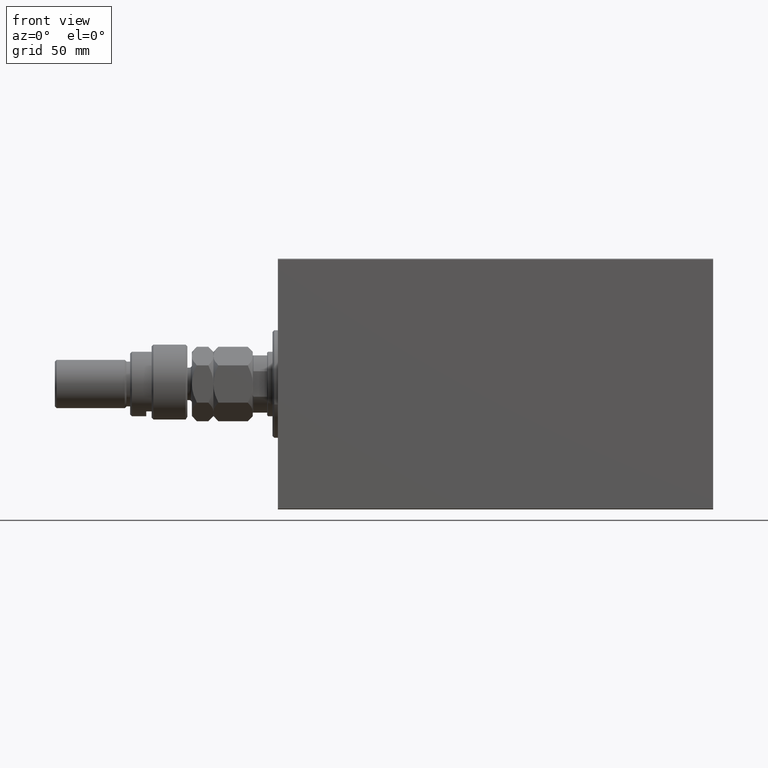
[diagram: clean part render]
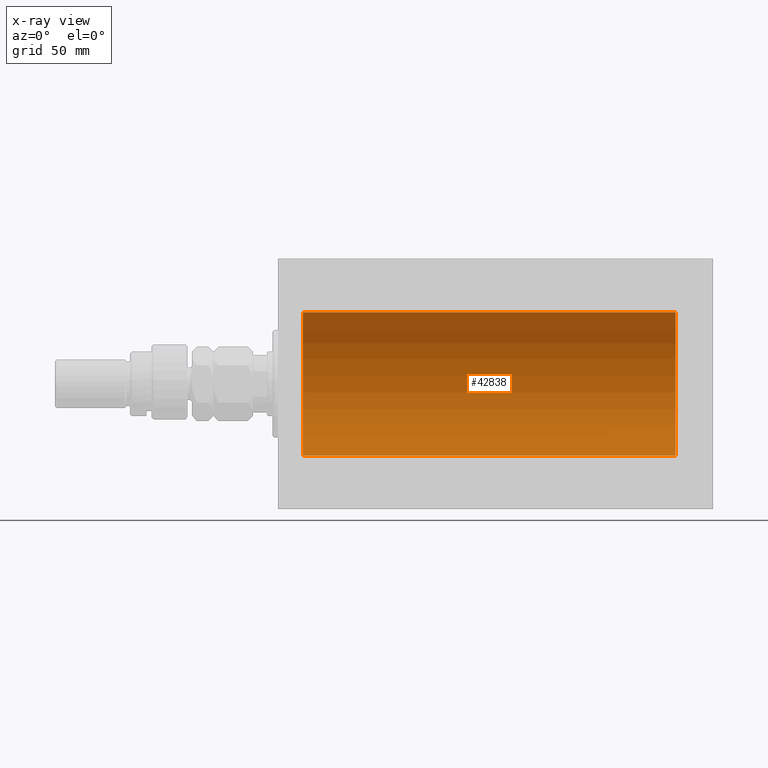
[diagram: x-ray — body ghosted, one internal face saturated and labeled with its STEP entity id]
A machine part, front view, then the same camera in x-ray: the body is ghosted and one INTERNAL B-rep face — a face not visible from any outside direction — is saturated and labeled: STEP entity #42838.
In plain terms, the highlighted cylindrical surface (partial cylindrical patch) has radius 40 mm, axis along (-1, -0, -0).
Its self-contained STEP definition (entity closure, byte-faithful):
#316 = VERTEX_POINT ( 'NONE', #3307 ) ;
#3037 = DIRECTION ( 'NONE',  ( 0.000000000000000000, 0.000000000000000000, 1.000000000000000000 ) ) ;
#3307 = CARTESIAN_POINT ( 'NONE',  ( 13.99999999999998401, 4.898587196589413026E-15, -40.00000000000000000 ) ) ;
#6395 = CARTESIAN_POINT ( 'NONE',  ( 13.99999999999998401, 0.000000000000000000, 40.00000000000000000 ) ) ;
#6468 = CIRCLE ( 'NONE', #15519, 40.00000000000000000 ) ;
#10655 = CARTESIAN_POINT ( 'NONE',  ( 222.0000000000000000, 0.000000000000000000, 0.000000000000000000 ) ) ;
#11416 = DIRECTION ( 'NONE',  ( -1.000000000000000000, -0.000000000000000000, -0.000000000000000000 ) ) ;
#11635 = CARTESIAN_POINT ( 'NONE',  ( 222.0000000000000000, 0.000000000000000000, 0.000000000000000000 ) ) ;
#13033 = DIRECTION ( 'NONE',  ( -1.000000000000000000, -0.000000000000000000, -0.000000000000000000 ) ) ;
#13156 = ORIENTED_EDGE ( 'NONE', *, *, #37866, .F. ) ;
#13727 = DIRECTION ( 'NONE',  ( -1.000000000000000000, 0.000000000000000000, 0.000000000000000000 ) ) ;
#14328 = ORIENTED_EDGE ( 'NONE', *, *, #26988, .T. ) ;
#14354 = VECTOR ( 'NONE', #19726, 1000.000000000000000 ) ;
#14904 = EDGE_CURVE ( 'NONE', #27855, #45951, #34571, .T. ) ;
#15519 = AXIS2_PLACEMENT_3D ( 'NONE', #10655, #13727, #42532 ) ;
#16578 = CARTESIAN_POINT ( 'NONE',  ( 222.0000000000000000, 4.898587196589413026E-15, -40.00000000000000000 ) ) ;
#17871 = CARTESIAN_POINT ( 'NONE',  ( 222.0000000000000000, 4.898587196589413026E-15, -40.00000000000000000 ) ) ;
#18489 = CYLINDRICAL_SURFACE ( 'NONE', #23251, 40.00000000000000000 ) ;
#19726 = DIRECTION ( 'NONE',  ( -1.000000000000000000, -0.000000000000000000, -0.000000000000000000 ) ) ;
#21463 = CIRCLE ( 'NONE', #32772, 40.00000000000000000 ) ;
#22039 = FACE_OUTER_BOUND ( 'NONE', #28744, .T. ) ;
#23251 = AXIS2_PLACEMENT_3D ( 'NONE', #11635, #11416, #32876 ) ;
#23506 = CARTESIAN_POINT ( 'NONE',  ( 222.0000000000000000, 0.000000000000000000, 40.00000000000000000 ) ) ;
#26092 = VERTEX_POINT ( 'NONE', #17871 ) ;
#26752 = VECTOR ( 'NONE', #13033, 1000.000000000000000 ) ;
#26988 = EDGE_CURVE ( 'NONE', #45951, #316, #21463, .T. ) ;
#27855 = VERTEX_POINT ( 'NONE', #40437 ) ;
#28744 = EDGE_LOOP ( 'NONE', ( #32549, #13156, #40399, #14328 ) ) ;
#32236 = EDGE_CURVE ( 'NONE', #26092, #316, #41842, .T. ) ;
#32549 = ORIENTED_EDGE ( 'NONE', *, *, #32236, .F. ) ;
#32772 = AXIS2_PLACEMENT_3D ( 'NONE', #41749, #38922, #3037 ) ;
#32876 = DIRECTION ( 'NONE',  ( 0.000000000000000000, 0.000000000000000000, 1.000000000000000000 ) ) ;
#34571 = LINE ( 'NONE', #23506, #14354 ) ;
#37866 = EDGE_CURVE ( 'NONE', #27855, #26092, #6468, .T. ) ;
#38922 = DIRECTION ( 'NONE',  ( -1.000000000000000000, 0.000000000000000000, 0.000000000000000000 ) ) ;
#40399 = ORIENTED_EDGE ( 'NONE', *, *, #14904, .T. ) ;
#40437 = CARTESIAN_POINT ( 'NONE',  ( 222.0000000000000000, 0.000000000000000000, 40.00000000000000000 ) ) ;
#41749 = CARTESIAN_POINT ( 'NONE',  ( 13.99999999999998401, 0.000000000000000000, 0.000000000000000000 ) ) ;
#41842 = LINE ( 'NONE', #16578, #26752 ) ;
#42532 = DIRECTION ( 'NONE',  ( 0.000000000000000000, 0.000000000000000000, 1.000000000000000000 ) ) ;
#42838 = ADVANCED_FACE ( 'NONE', ( #22039 ), #18489, .F. ) ;
#45951 = VERTEX_POINT ( 'NONE', #6395 ) ;